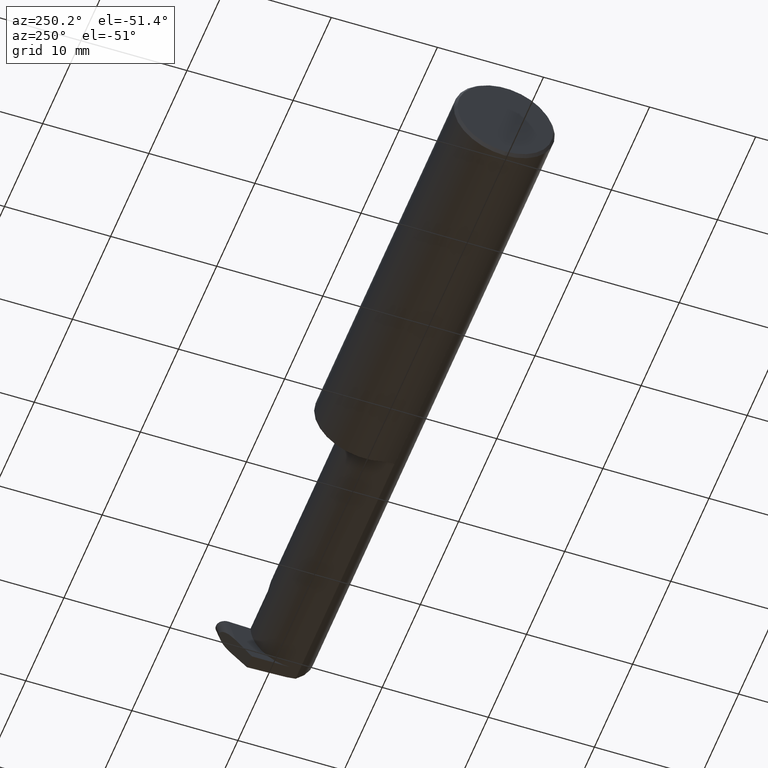
[diagram: clean part render]
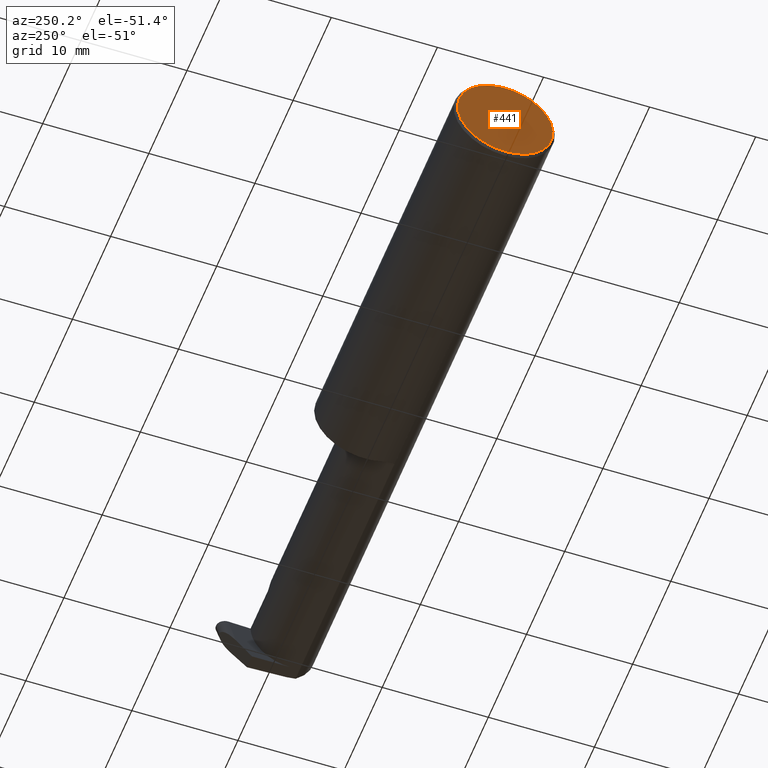
[diagram: same view with one face highlighted and labeled with its STEP entity id]
A machine part, auxiliary view. The second image highlights one B-rep face of the part: STEP entity #441.
In plain terms, the highlighted planar face has unit normal (1, 0, 0).
Its self-contained STEP definition (entity closure, byte-faithful):
#88 = CARTESIAN_POINT ( 'NONE',  ( 0.000000000000000000, 0.000000000000000000, 0.000000000000000000 ) ) ;
#115 = EDGE_CURVE ( 'NONE', #423, #401, #299, .T. ) ;
#117 = CARTESIAN_POINT ( 'NONE',  ( 0.000000000000000000, 0.000000000000000000, 0.000000000000000000 ) ) ;
#125 = PLANE ( 'NONE',  #654 ) ;
#139 = DIRECTION ( 'NONE',  ( -1.000000000000000000, -0.000000000000000000, -0.000000000000000000 ) ) ;
#144 = DIRECTION ( 'NONE',  ( 0.000000000000000000, 0.000000000000000000, -1.000000000000000000 ) ) ;
#176 = CARTESIAN_POINT ( 'NONE',  ( 0.000000000000000000, 0.000000000000000000, -0.1773499999999999521 ) ) ;
#186 = EDGE_CURVE ( 'NONE', #401, #262, #300, .T. ) ;
#219 = CIRCLE ( 'NONE', #615, 0.1773499999999999521 ) ;
#222 = DIRECTION ( 'NONE',  ( 0.000000000000000000, 0.000000000000000000, -1.000000000000000000 ) ) ;
#232 = CARTESIAN_POINT ( 'NONE',  ( 0.000000000000000000, 0.01880691362238934988, 0.1763499999999999235 ) ) ;
#237 = EDGE_LOOP ( 'NONE', ( #267, #354, #370 ) ) ;
#262 = VERTEX_POINT ( 'NONE', #232 ) ;
#267 = ORIENTED_EDGE ( 'NONE', *, *, #186, .T. ) ;
#272 = DIRECTION ( 'NONE',  ( 1.000000000000000000, 0.000000000000000000, 0.000000000000000000 ) ) ;
#299 = CIRCLE ( 'NONE', #322, 0.1773499999999999521 ) ;
#300 = LINE ( 'NONE', #398, #560 ) ;
#322 = AXIS2_PLACEMENT_3D ( 'NONE', #117, #339, #222 ) ;
#339 = DIRECTION ( 'NONE',  ( -1.000000000000000000, -0.000000000000000000, -0.000000000000000000 ) ) ;
#348 = CARTESIAN_POINT ( 'NONE',  ( 0.000000000000000000, 0.000000000000000000, 0.000000000000000000 ) ) ;
#354 = ORIENTED_EDGE ( 'NONE', *, *, #549, .T. ) ;
#370 = ORIENTED_EDGE ( 'NONE', *, *, #115, .T. ) ;
#398 = CARTESIAN_POINT ( 'NONE',  ( 0.000000000000000000, 0.1873499999999998500, 0.1763499999999999235 ) ) ;
#401 = VERTEX_POINT ( 'NONE', #559 ) ;
#423 = VERTEX_POINT ( 'NONE', #176 ) ;
#431 = FACE_OUTER_BOUND ( 'NONE', #237, .T. ) ;
#441 = ADVANCED_FACE ( 'NONE', ( #431 ), #125, .F. ) ;
#446 = DIRECTION ( 'NONE',  ( -0.000000000000000000, 1.000000000000000000, -0.000000000000000000 ) ) ;
#549 = EDGE_CURVE ( 'NONE', #262, #423, #219, .T. ) ;
#559 = CARTESIAN_POINT ( 'NONE',  ( 0.000000000000000000, -0.01880691362238934641, 0.1763499999999999235 ) ) ;
#560 = VECTOR ( 'NONE', #446, 39.37007874015748143 ) ;
#615 = AXIS2_PLACEMENT_3D ( 'NONE', #88, #139, #144 ) ;
#651 = DIRECTION ( 'NONE',  ( 0.000000000000000000, 0.000000000000000000, -1.000000000000000000 ) ) ;
#654 = AXIS2_PLACEMENT_3D ( 'NONE', #348, #272, #651 ) ;